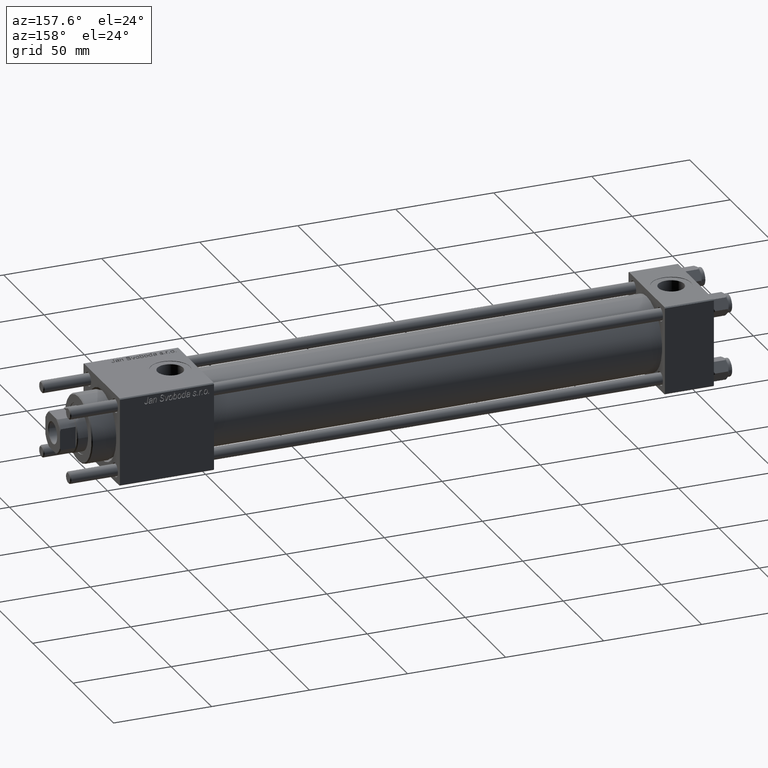
[diagram: clean part render]
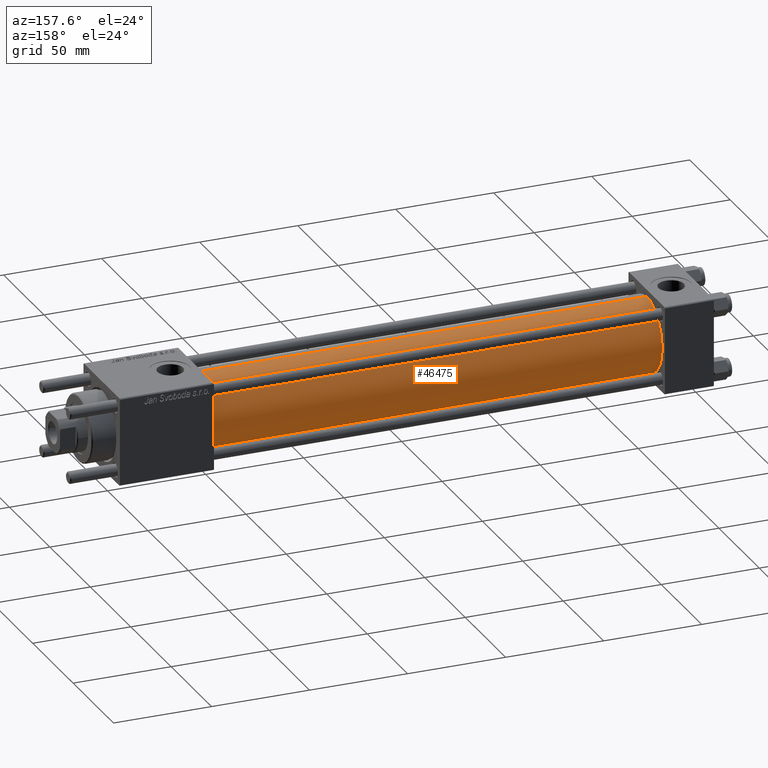
[diagram: same view with one face highlighted and labeled with its STEP entity id]
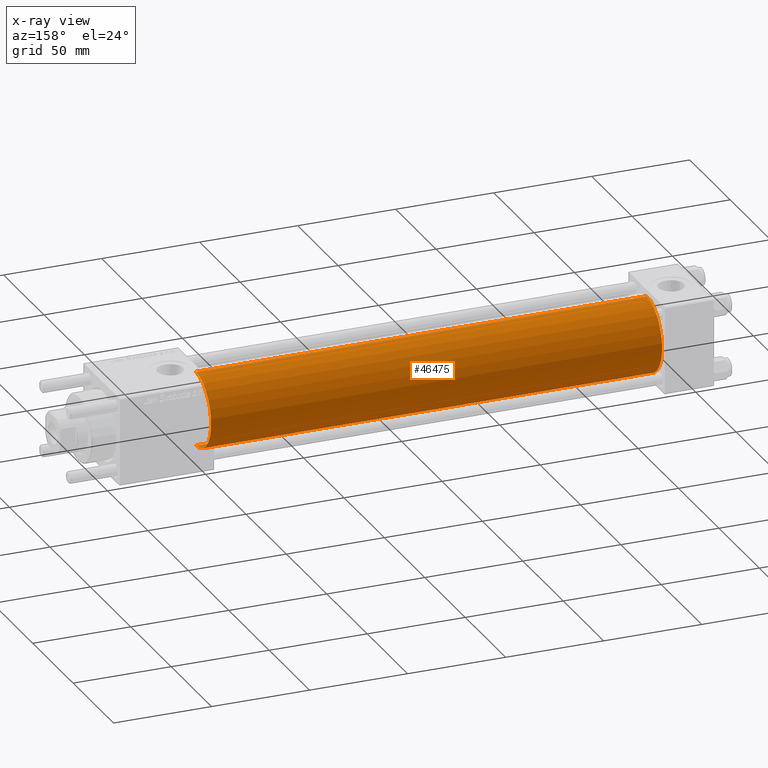
[diagram: x-ray of the same camera — body ghosted, the highlighted face saturated]
A machine part, auxiliary view. The second image highlights one B-rep face of the part: STEP entity #46475.
The next image is the same camera in x-ray: the body ghosted, the highlighted face saturated — about 0% of this face is hidden behind the body in this view.
In plain terms, the highlighted cylindrical surface (partial cylindrical patch) has radius 19 mm, axis along (-1, -0, -0).
Its self-contained STEP definition (entity closure, byte-faithful):
#2668 = VECTOR ( 'NONE', #34797, 1000.000000000000000 ) ;
#6561 = ORIENTED_EDGE ( 'NONE', *, *, #56321, .T. ) ;
#7344 = CIRCLE ( 'NONE', #46105, 19.00000000000000000 ) ;
#7494 = FACE_OUTER_BOUND ( 'NONE', #47980, .T. ) ;
#8217 = DIRECTION ( 'NONE',  ( 0.000000000000000000, 0.000000000000000000, 1.000000000000000000 ) ) ;
#9318 = EDGE_CURVE ( 'NONE', #57035, #39196, #29230, .T. ) ;
#9762 = LINE ( 'NONE', #23420, #20360 ) ;
#12174 = DIRECTION ( 'NONE',  ( 1.000000000000000000, -0.000000000000000000, 0.000000000000000000 ) ) ;
#13539 = ORIENTED_EDGE ( 'NONE', *, *, #35127, .F. ) ;
#14007 = DIRECTION ( 'NONE',  ( -1.000000000000000000, -0.000000000000000000, -0.000000000000000000 ) ) ;
#16289 = CARTESIAN_POINT ( 'NONE',  ( 255.0000000000000000, -2.602085213965210642E-15, 19.00000000000000000 ) ) ;
#20360 = VECTOR ( 'NONE', #14007, 1000.000000000000000 ) ;
#20821 = ORIENTED_EDGE ( 'NONE', *, *, #9318, .T. ) ;
#21147 = DIRECTION ( 'NONE',  ( 1.000000000000000000, 0.000000000000000000, 0.000000000000000000 ) ) ;
#23129 = CARTESIAN_POINT ( 'NONE',  ( 255.0000000000000000, -2.602085213965210642E-15, 19.00000000000000000 ) ) ;
#23420 = CARTESIAN_POINT ( 'NONE',  ( 255.0000000000000000, -2.752562955852396712E-16, -19.00000000000000000 ) ) ;
#24387 = CARTESIAN_POINT ( 'NONE',  ( 24.99999999999999289, -2.752562955852396712E-16, -19.00000000000000000 ) ) ;
#25689 = DIRECTION ( 'NONE',  ( 0.000000000000000000, 0.000000000000000000, -1.000000000000000000 ) ) ;
#29230 = CIRCLE ( 'NONE', #52449, 19.00000000000000000 ) ;
#29655 = LINE ( 'NONE', #16289, #2668 ) ;
#30363 = EDGE_CURVE ( 'NONE', #43419, #57396, #7344, .T. ) ;
#33263 = CARTESIAN_POINT ( 'NONE',  ( 255.0000000000000000, -2.752562955852396712E-16, -19.00000000000000000 ) ) ;
#34797 = DIRECTION ( 'NONE',  ( -1.000000000000000000, -0.000000000000000000, -0.000000000000000000 ) ) ;
#35127 = EDGE_CURVE ( 'NONE', #57396, #39196, #29655, .T. ) ;
#39038 = CARTESIAN_POINT ( 'NONE',  ( 24.99999999999999289, -2.602085213965210642E-15, 19.00000000000000000 ) ) ;
#39196 = VERTEX_POINT ( 'NONE', #39038 ) ;
#43419 = VERTEX_POINT ( 'NONE', #33263 ) ;
#44344 = CARTESIAN_POINT ( 'NONE',  ( 24.99999999999999289, -2.602085213965210642E-15, 0.000000000000000000 ) ) ;
#44519 = DIRECTION ( 'NONE',  ( -1.000000000000000000, -0.000000000000000000, -0.000000000000000000 ) ) ;
#46105 = AXIS2_PLACEMENT_3D ( 'NONE', #59321, #21147, #25689 ) ;
#46162 = AXIS2_PLACEMENT_3D ( 'NONE', #59040, #44519, #57862 ) ;
#46475 = ADVANCED_FACE ( 'NONE', ( #7494 ), #49044, .T. ) ;
#47980 = EDGE_LOOP ( 'NONE', ( #48628, #6561, #20821, #13539 ) ) ;
#48628 = ORIENTED_EDGE ( 'NONE', *, *, #30363, .F. ) ;
#49044 = CYLINDRICAL_SURFACE ( 'NONE', #46162, 19.00000000000000000 ) ;
#52449 = AXIS2_PLACEMENT_3D ( 'NONE', #44344, #12174, #8217 ) ;
#56321 = EDGE_CURVE ( 'NONE', #43419, #57035, #9762, .T. ) ;
#57035 = VERTEX_POINT ( 'NONE', #24387 ) ;
#57396 = VERTEX_POINT ( 'NONE', #23129 ) ;
#57862 = DIRECTION ( 'NONE',  ( 0.000000000000000000, 0.000000000000000000, 1.000000000000000000 ) ) ;
#59040 = CARTESIAN_POINT ( 'NONE',  ( 255.0000000000000000, -2.602085213965210642E-15, 0.000000000000000000 ) ) ;
#59321 = CARTESIAN_POINT ( 'NONE',  ( 255.0000000000000000, -2.602085213965210642E-15, 0.000000000000000000 ) ) ;